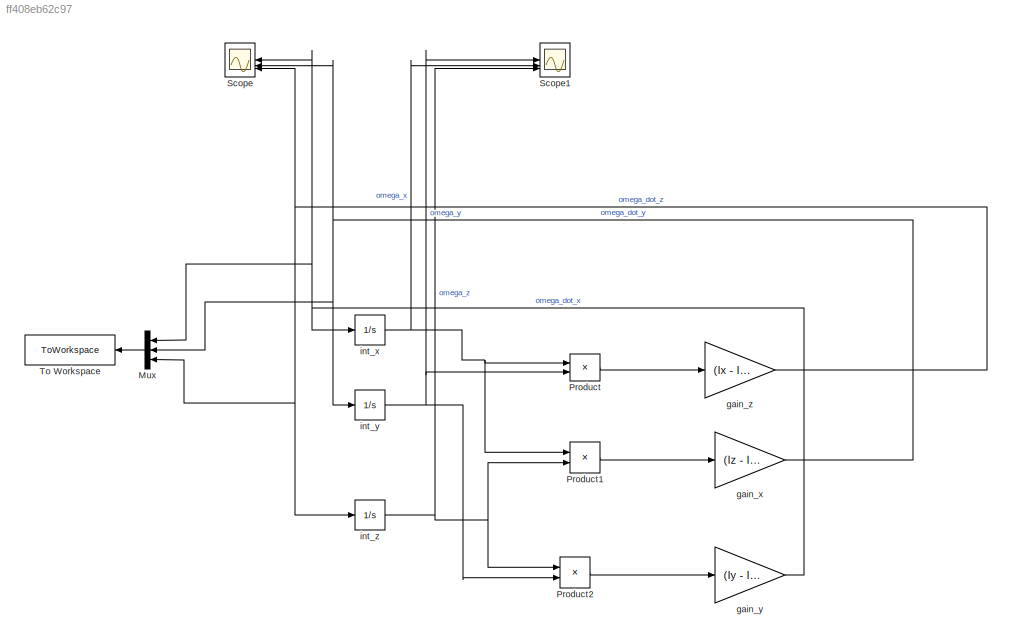
MODEL slx_ff408eb62c97
KIND model
CONFIG AbsTol = auto
CONFIG EnableMultiTasking = off
CONFIG FixedStep = 0.1
CONFIG MaxStep = auto
CONFIG MinStep = auto
CONFIG RelTol = 1e-3
CONFIG SampleTimeConstraint = Unconstrained
CONFIG SolverName = FixedStepAuto
CONFIG StartTime = 0.0
CONFIG StopTime = 100.0
BLOCK [Mux] Mux
  DisplayOption = bar
  Inputs = 3
  NameLocation = top
BLOCK [Product] Product
BLOCK [Product] Product1
BLOCK [Product] Product2
BLOCK [Scope] Scope
  Floating = off
  NameLocation = top
  NumInputPorts = 3
  ScopeSpecificationString = Simulink.scopes.TimeScopeBlockCfg('CurrentConfiguration', extmgr.ConfigurationSet(extmgr.Configuration('Core','General UI',true),extmgr.Configuration('Core','Source UI',true),extmgr.Configuration('Sources','WiredSimulink',true),extmgr.Configuration('Visuals','Time Domain',true,'SerializedDisplays',{struct('MinYLimReal','-0.000000024','MaxYLimReal','0.000000012','YLabelReal','','MinYLimMag','0.0000...<+1391ch>
BLOCK [Scope] Scope1
  Floating = off
  NumInputPorts = 3
  ScopeSpecificationString = Simulink.scopes.TimeScopeBlockCfg('CurrentConfiguration', extmgr.ConfigurationSet(extmgr.Configuration('Core','General UI',true),extmgr.Configuration('Core','Source UI',true),extmgr.Configuration('Sources','WiredSimulink',true,'DataLoggingVariableName','ScopeData1'),extmgr.Configuration('Visuals','Time Domain',true,'SerializedDisplays',{struct('MinYLimReal','-0.0025','MaxYLimReal','0.0225','YLabel...<+1380ch>
BLOCK [ToWorkspace] To Workspace
  FixptAsFi = on
  MaxDataPoints = inf
  NameLocation = top
  SampleTime = -1
  SaveFormat = Timeseries
  VariableName = om_dot
BLOCK [Gain] gain_x
  Gain = (Iz - Ix)/Iy
BLOCK [Gain] gain_y
  Gain = (Iy - Iz)/Ix
BLOCK [Gain] gain_z
  Gain = (Ix - Iy)/Iz
BLOCK [Integrator] int_x
  InitialCondition = om_x0
BLOCK [Integrator] int_y
  InitialCondition = om_y0
BLOCK [Integrator] int_z
  InitialCondition = om_z0
LINE Mux:1 -> To Workspace:1
LINE Product1:1 -> gain_x:1
LINE Product2:1 -> gain_y:1
LINE Product:1 -> gain_z:1
NET gain_x:1 -> Mux:2, Scope:2, int_y:1
NET gain_y:1 -> Mux:1, Scope:1, int_x:1
NET gain_z:1 -> Mux:3, Scope:3, int_z:1
NET int_x:1 -> Product1:1, Product:1, Scope1:2
NET int_y:1 -> Product2:2, Product:2, Scope1:1
NET int_z:1 -> Product1:2, Product2:1, Scope1:3
note: NET lines group one-source signal fan-out (src -> all destinations, sorted); 1:1 wires keep LINE
